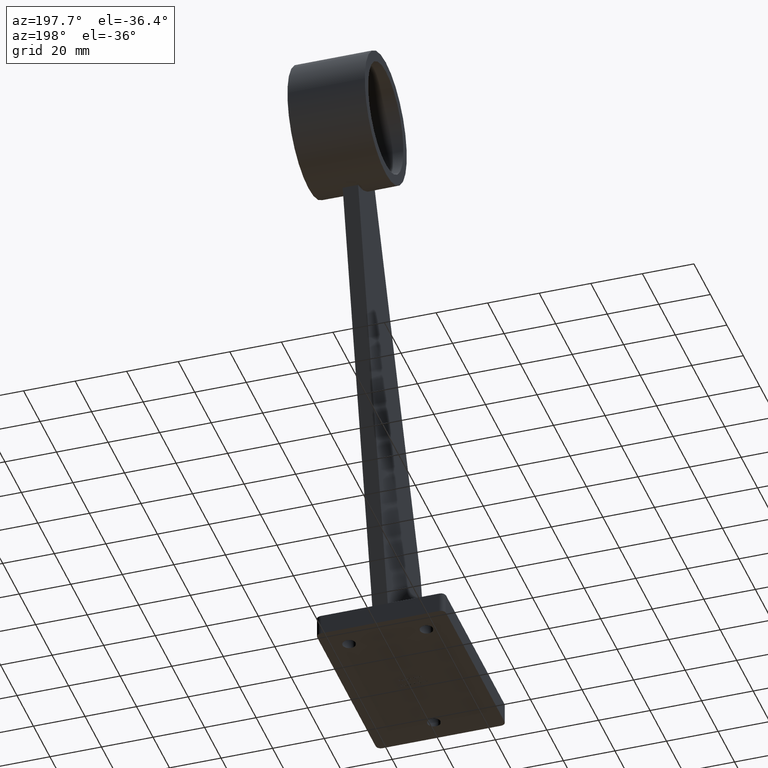
[diagram: clean part render]
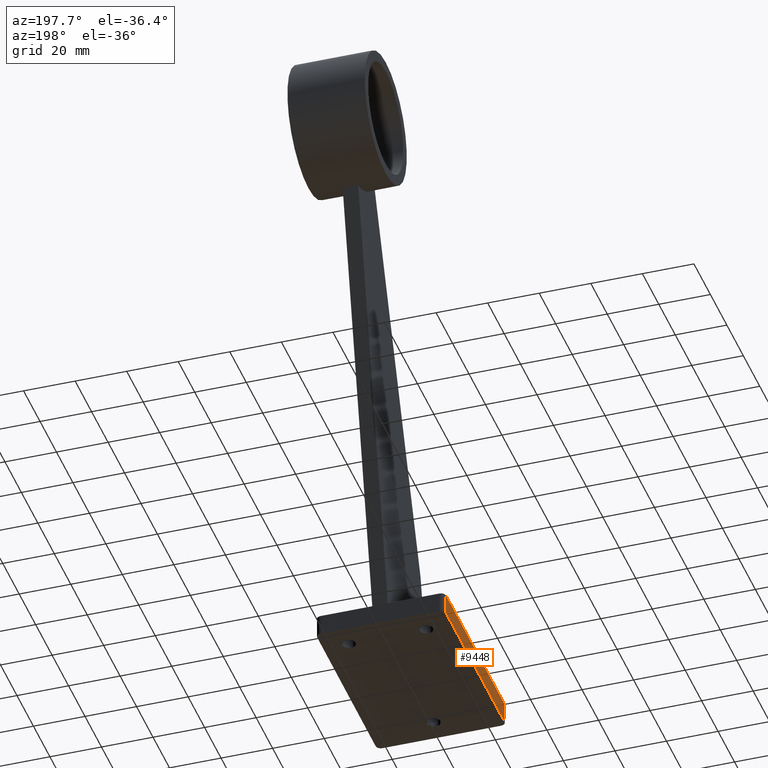
[diagram: same view with one face highlighted and labeled with its STEP entity id]
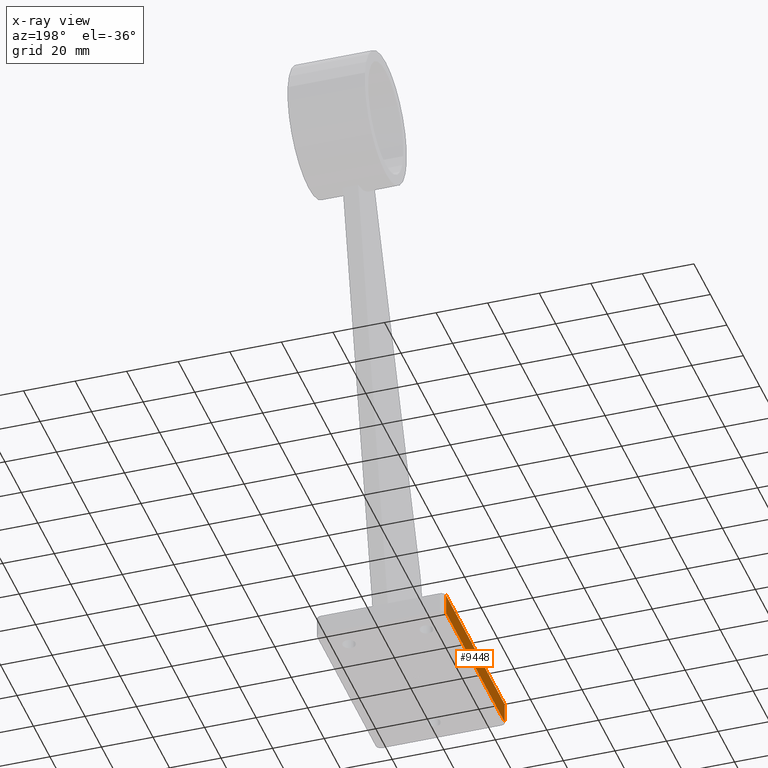
[diagram: x-ray of the same camera — body ghosted, the highlighted face saturated]
A machine part, auxiliary view. The second image highlights one B-rep face of the part: STEP entity #9448.
The next image is the same camera in x-ray: the body ghosted, the highlighted face saturated — about 0% of this face is hidden behind the body in this view.
In plain terms, the highlighted planar face has unit normal (1, 0, 0).
Its self-contained STEP definition (entity closure, byte-faithful):
#114 = ORIENTED_EDGE ( 'NONE', *, *, #14047, .T. ) ;
#169 = VECTOR ( 'NONE', #6945, 1000.000000000000000 ) ;
#442 = LINE ( 'NONE', #14710, #8908 ) ;
#605 = ORIENTED_EDGE ( 'NONE', *, *, #10808, .T. ) ;
#886 = CARTESIAN_POINT ( 'NONE',  ( -24.99999999999999645, -35.50000000000000000, 0.000000000000000000 ) ) ;
#2756 = CARTESIAN_POINT ( 'NONE',  ( -25.00000000000000355, 37.50000000000000000, 0.000000000000000000 ) ) ;
#3147 = ORIENTED_EDGE ( 'NONE', *, *, #12141, .T. ) ;
#3323 = VECTOR ( 'NONE', #10750, 1000.000000000000000 ) ;
#3499 = DIRECTION ( 'NONE',  ( -9.251858538542971581E-17, 1.000000000000000000, 0.000000000000000000 ) ) ;
#4597 = VECTOR ( 'NONE', #7745, 1000.000000000000000 ) ;
#4705 = EDGE_LOOP ( 'NONE', ( #14210, #3147, #114, #605 ) ) ;
#4776 = LINE ( 'NONE', #11093, #4597 ) ;
#5976 = VERTEX_POINT ( 'NONE', #8492 ) ;
#6055 = FACE_OUTER_BOUND ( 'NONE', #4705, .T. ) ;
#6899 = CARTESIAN_POINT ( 'NONE',  ( -25.00000000000000355, 37.50000000000000000, 8.000000000000000000 ) ) ;
#6945 = DIRECTION ( 'NONE',  ( 9.251858538542971581E-17, -1.000000000000000000, 0.000000000000000000 ) ) ;
#7745 = DIRECTION ( 'NONE',  ( 0.000000000000000000, 0.000000000000000000, -1.000000000000000000 ) ) ;
#7985 = DIRECTION ( 'NONE',  ( 0.000000000000000000, -0.000000000000000000, 1.000000000000000000 ) ) ;
#8492 = CARTESIAN_POINT ( 'NONE',  ( -25.00000000000000355, 35.50000000000000000, 0.000000000000000000 ) ) ;
#8864 = CARTESIAN_POINT ( 'NONE',  ( -24.99999999999999645, -35.50000000000000000, 8.000000000000000000 ) ) ;
#8908 = VECTOR ( 'NONE', #7985, 1000.000000000000000 ) ;
#9445 = LINE ( 'NONE', #2756, #3323 ) ;
#9447 = CARTESIAN_POINT ( 'NONE',  ( -25.00000000000000355, 35.50000000000000000, 8.000000000000000000 ) ) ;
#9448 = ADVANCED_FACE ( 'NONE', ( #6055 ), #13761, .F. ) ;
#10267 = VERTEX_POINT ( 'NONE', #886 ) ;
#10379 = DIRECTION ( 'NONE',  ( 1.000000000000000000, 9.251858538542971581E-17, -0.000000000000000000 ) ) ;
#10750 = DIRECTION ( 'NONE',  ( 9.251858538542971581E-17, -1.000000000000000000, 0.000000000000000000 ) ) ;
#10808 = EDGE_CURVE ( 'NONE', #10267, #13806, #442, .T. ) ;
#11093 = CARTESIAN_POINT ( 'NONE',  ( -25.00000000000000355, 35.50000000000000000, 8.000000000000000000 ) ) ;
#11790 = EDGE_CURVE ( 'NONE', #13562, #13806, #13621, .T. ) ;
#12141 = EDGE_CURVE ( 'NONE', #13562, #5976, #4776, .T. ) ;
#12179 = AXIS2_PLACEMENT_3D ( 'NONE', #6899, #10379, #3499 ) ;
#13562 = VERTEX_POINT ( 'NONE', #9447 ) ;
#13621 = LINE ( 'NONE', #14777, #169 ) ;
#13761 = PLANE ( 'NONE',  #12179 ) ;
#13806 = VERTEX_POINT ( 'NONE', #8864 ) ;
#14047 = EDGE_CURVE ( 'NONE', #5976, #10267, #9445, .T. ) ;
#14210 = ORIENTED_EDGE ( 'NONE', *, *, #11790, .F. ) ;
#14710 = CARTESIAN_POINT ( 'NONE',  ( -24.99999999999999645, -35.50000000000000000, 8.000000000000000000 ) ) ;
#14777 = CARTESIAN_POINT ( 'NONE',  ( -25.00000000000000355, 37.50000000000000000, 8.000000000000000000 ) ) ;